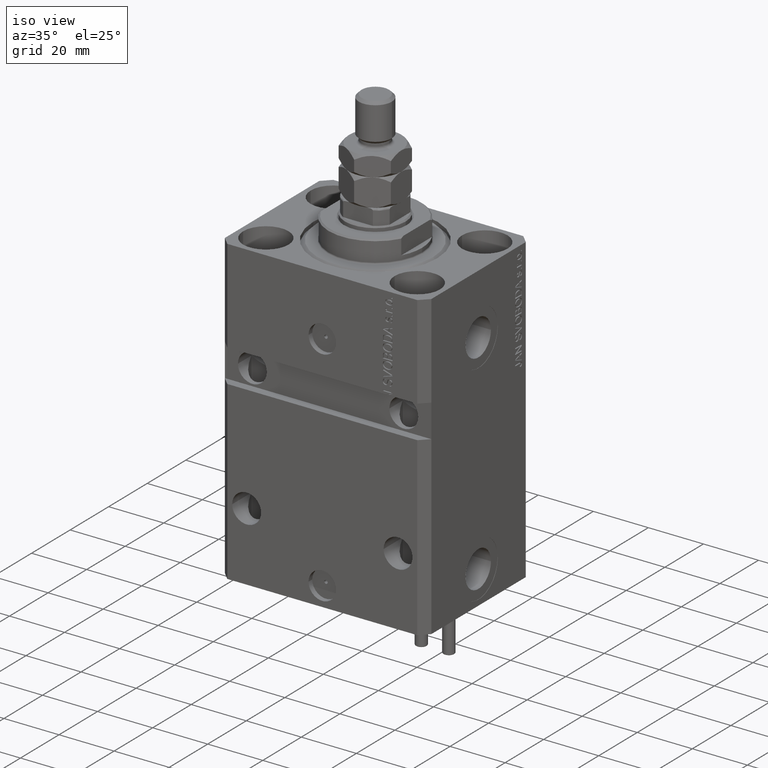
[diagram: clean part render]
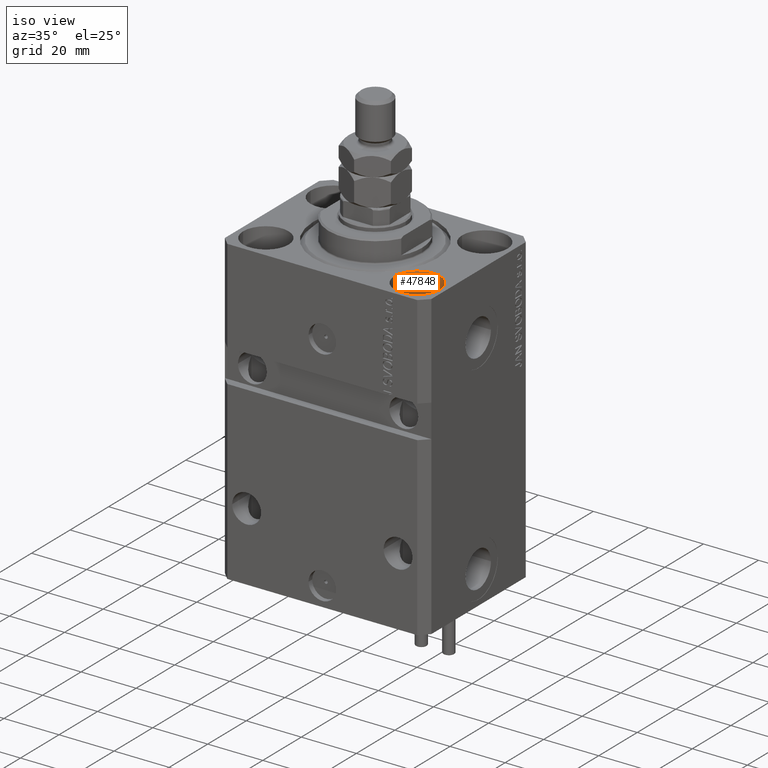
[diagram: same view with one face highlighted and labeled with its STEP entity id]
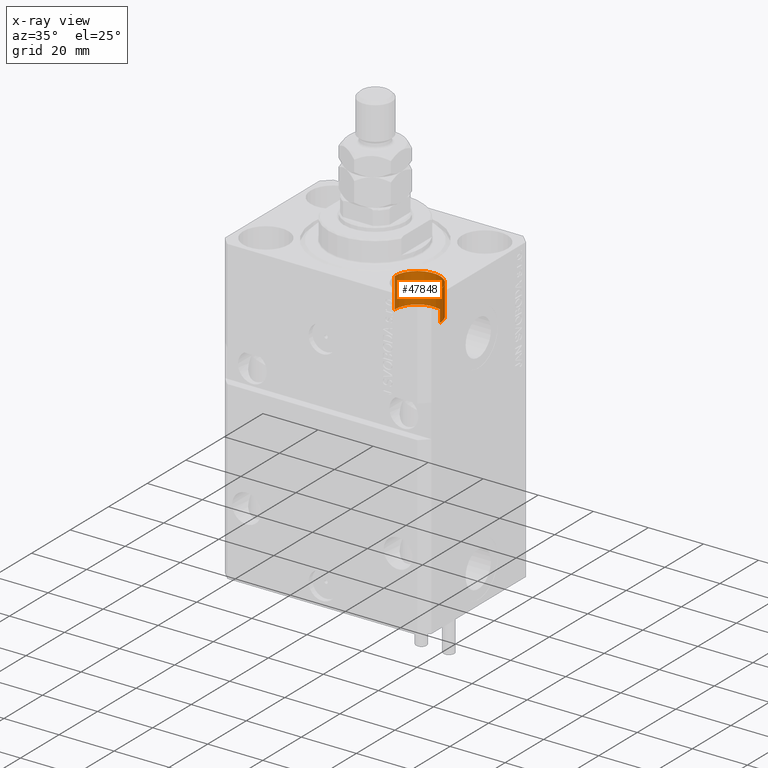
[diagram: x-ray of the same camera — body ghosted, the highlighted face saturated]
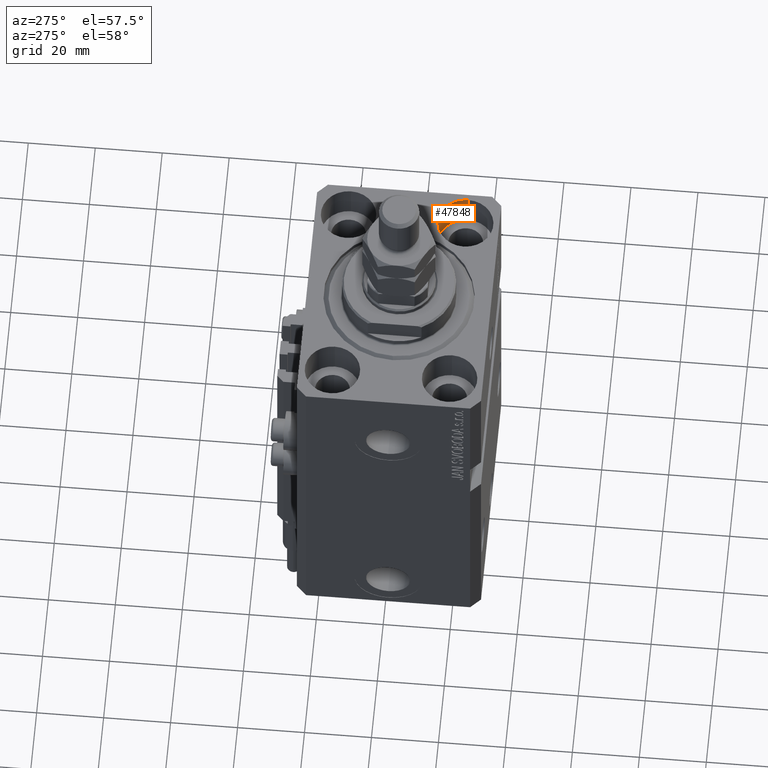
[diagram: same view with one face highlighted and labeled with its STEP entity id]
A machine part, iso view. The second image highlights one B-rep face of the part: STEP entity #47848.
The next image is the same camera in x-ray: the body ghosted, the highlighted face saturated — about 0% of this face is hidden behind the body in this view.
A second angle (auxiliary view) of the same face is appended — the face is thin or edge-on in the first view.
In plain terms, the highlighted cylindrical surface (edge-blend (fillet) strip) has radius 8.25 mm, axis along (0, 0, 1).
Its self-contained STEP definition (entity closure, byte-faithful):
#1251 = CARTESIAN_POINT ( 'NONE',  ( 27.50000000000000355, -17.50000000000000000, 0.000000000000000000 ) ) ;
#2840 = CARTESIAN_POINT ( 'NONE',  ( 27.50000000000000355, -17.50000000000000000, -11.00000000000000000 ) ) ;
#4836 = DIRECTION ( 'NONE',  ( -0.000000000000000000, -0.000000000000000000, 1.000000000000000000 ) ) ;
#5059 = DIRECTION ( 'NONE',  ( 0.000000000000000000, 0.000000000000000000, 1.000000000000000000 ) ) ;
#8353 = DIRECTION ( 'NONE',  ( 1.000000000000000000, 0.000000000000000000, 0.000000000000000000 ) ) ;
#9754 = CARTESIAN_POINT ( 'NONE',  ( 35.75000000000000711, -17.50000000000000000, 0.000000000000000000 ) ) ;
#9936 = CARTESIAN_POINT ( 'NONE',  ( 27.50000000000000355, -17.50000000000000000, -11.00000000000000000 ) ) ;
#10163 = VERTEX_POINT ( 'NONE', #20644 ) ;
#10685 = DIRECTION ( 'NONE',  ( 1.000000000000000000, 0.000000000000000000, 0.000000000000000000 ) ) ;
#15395 = VECTOR ( 'NONE', #44212, 1000.000000000000000 ) ;
#16215 = VECTOR ( 'NONE', #4836, 1000.000000000000000 ) ;
#16534 = CIRCLE ( 'NONE', #42507, 8.250000000000000000 ) ;
#17008 = CARTESIAN_POINT ( 'NONE',  ( 35.75000000000000711, -17.50000000000000000, -11.00000000000000000 ) ) ;
#17563 = VERTEX_POINT ( 'NONE', #49152 ) ;
#17834 = FACE_OUTER_BOUND ( 'NONE', #37430, .T. ) ;
#18336 = DIRECTION ( 'NONE',  ( -0.000000000000000000, -0.000000000000000000, 1.000000000000000000 ) ) ;
#19563 = CARTESIAN_POINT ( 'NONE',  ( 19.25000000000000000, -17.50000000000000000, -11.00000000000000000 ) ) ;
#20644 = CARTESIAN_POINT ( 'NONE',  ( 19.25000000000000000, -17.50000000000000000, 0.000000000000000000 ) ) ;
#20654 = CIRCLE ( 'NONE', #36078, 8.250000000000000000 ) ;
#22139 = CYLINDRICAL_SURFACE ( 'NONE', #34340, 8.250000000000000000 ) ;
#23434 = ORIENTED_EDGE ( 'NONE', *, *, #36449, .F. ) ;
#25450 = DIRECTION ( 'NONE',  ( 0.000000000000000000, 0.000000000000000000, 1.000000000000000000 ) ) ;
#25700 = DIRECTION ( 'NONE',  ( 1.000000000000000000, 0.000000000000000000, 0.000000000000000000 ) ) ;
#27192 = LINE ( 'NONE', #19563, #16215 ) ;
#29598 = ORIENTED_EDGE ( 'NONE', *, *, #36599, .T. ) ;
#29967 = VERTEX_POINT ( 'NONE', #9754 ) ;
#32416 = ORIENTED_EDGE ( 'NONE', *, *, #44587, .F. ) ;
#32830 = ORIENTED_EDGE ( 'NONE', *, *, #49421, .T. ) ;
#34340 = AXIS2_PLACEMENT_3D ( 'NONE', #2840, #18336, #25700 ) ;
#34963 = VERTEX_POINT ( 'NONE', #36498 ) ;
#36078 = AXIS2_PLACEMENT_3D ( 'NONE', #1251, #5059, #8353 ) ;
#36449 = EDGE_CURVE ( 'NONE', #34963, #10163, #27192, .T. ) ;
#36498 = CARTESIAN_POINT ( 'NONE',  ( 19.25000000000000000, -17.50000000000000000, -11.00000000000000000 ) ) ;
#36599 = EDGE_CURVE ( 'NONE', #17563, #29967, #43963, .T. ) ;
#37430 = EDGE_LOOP ( 'NONE', ( #23434, #32416, #29598, #32830 ) ) ;
#42507 = AXIS2_PLACEMENT_3D ( 'NONE', #9936, #25450, #10685 ) ;
#43963 = LINE ( 'NONE', #17008, #15395 ) ;
#44212 = DIRECTION ( 'NONE',  ( -0.000000000000000000, -0.000000000000000000, 1.000000000000000000 ) ) ;
#44587 = EDGE_CURVE ( 'NONE', #17563, #34963, #16534, .T. ) ;
#47848 = ADVANCED_FACE ( 'NONE', ( #17834 ), #22139, .F. ) ;
#49152 = CARTESIAN_POINT ( 'NONE',  ( 35.75000000000000711, -17.50000000000000000, -11.00000000000000000 ) ) ;
#49421 = EDGE_CURVE ( 'NONE', #29967, #10163, #20654, .T. ) ;